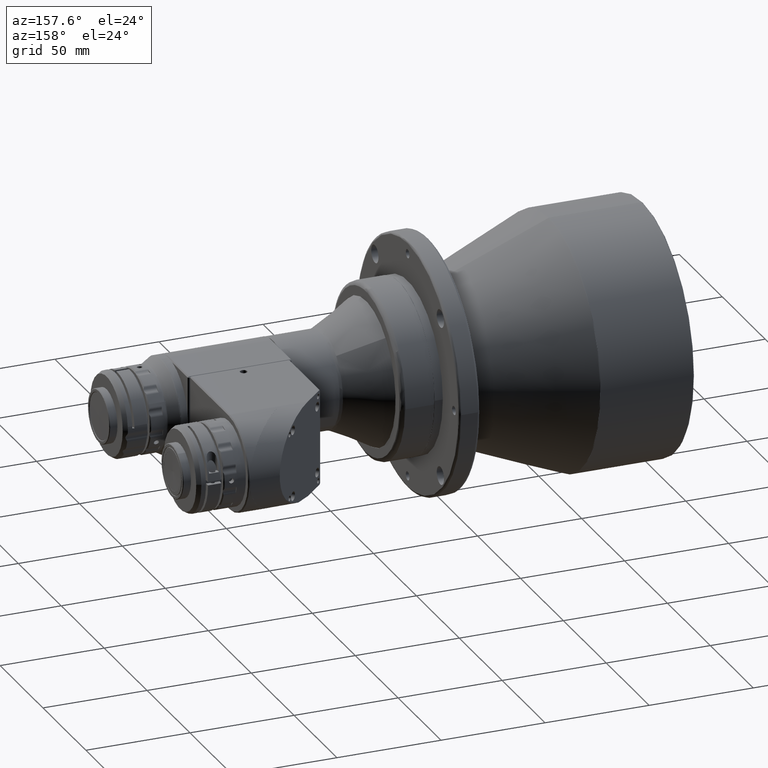
[diagram: clean part render]
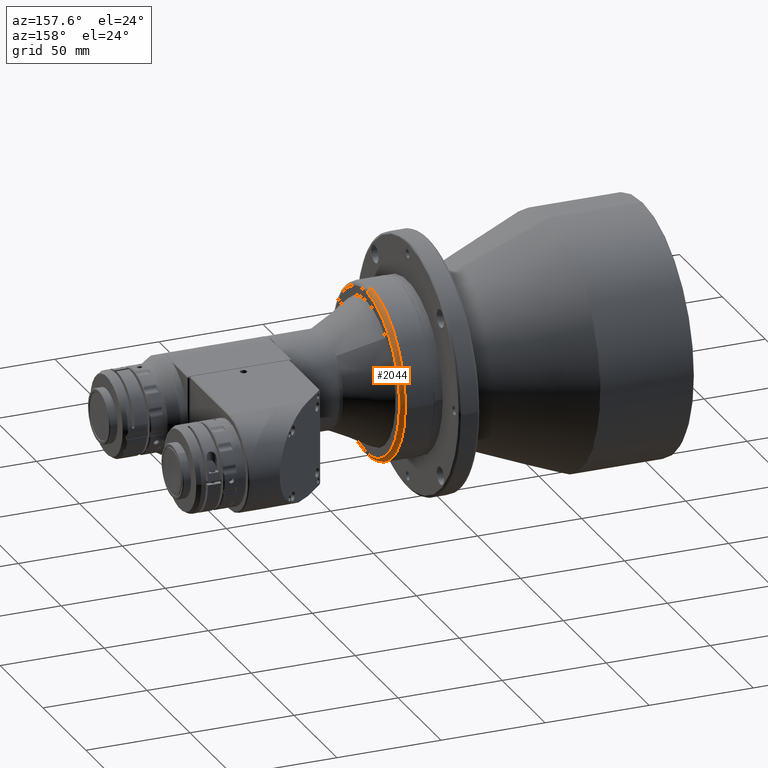
[diagram: same view with one face highlighted and labeled with its STEP entity id]
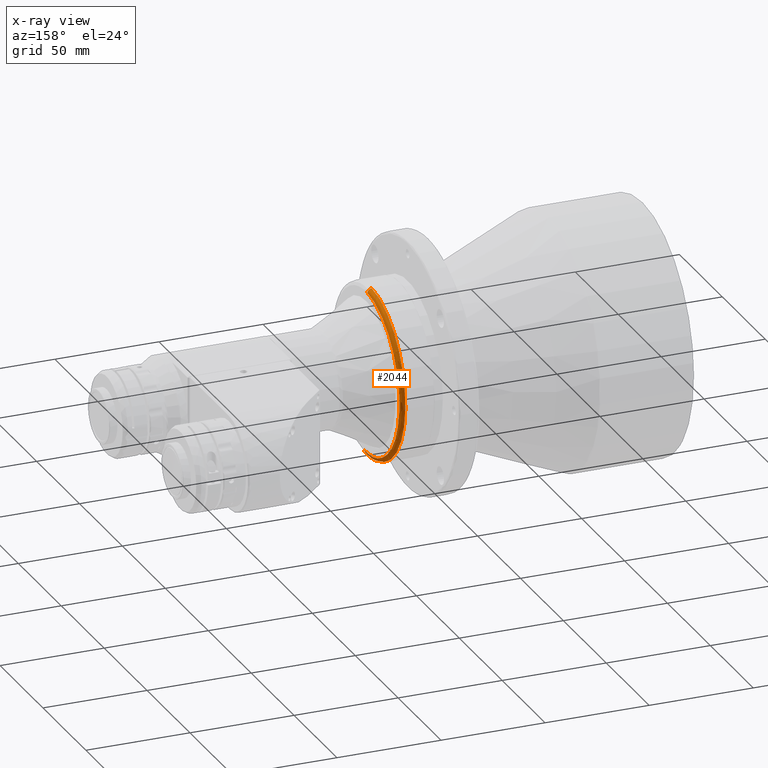
[diagram: x-ray of the same camera — body ghosted, the highlighted face saturated]
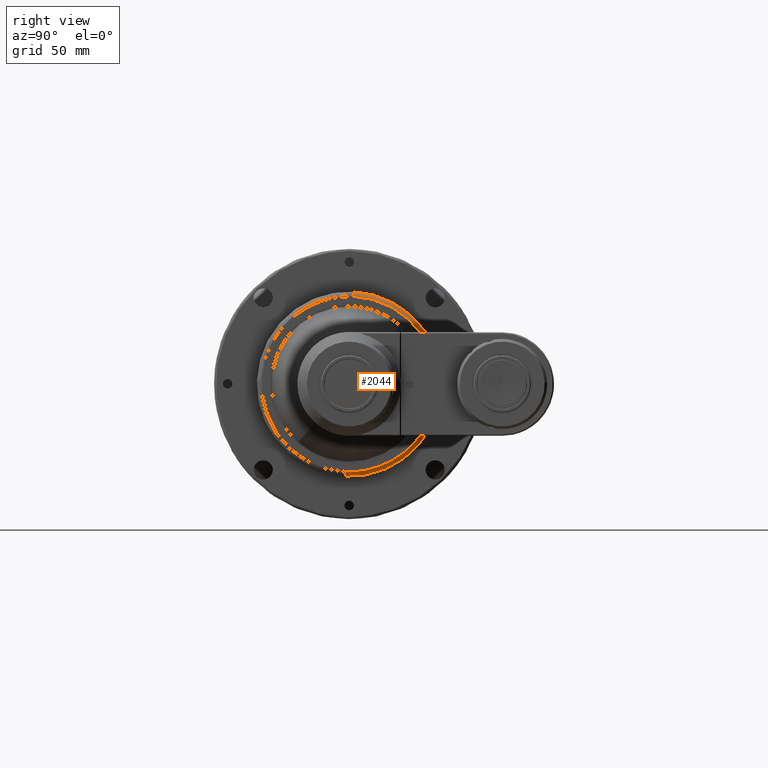
[diagram: same view with one face highlighted and labeled with its STEP entity id]
A machine part, auxiliary view. The second image highlights one B-rep face of the part: STEP entity #2044.
The next image is the same camera in x-ray: the body ghosted, the highlighted face saturated — about 0% of this face is hidden behind the body in this view.
A second angle (right view) of the same face is appended — the face is thin or edge-on in the first view.
In plain terms, the highlighted face is a freeform B-spline surface patch.
Its self-contained STEP definition (entity closure, byte-faithful):
#301 = CARTESIAN_POINT ( 'NONE',  ( 131.0000000000000000, 40.95986500285684400, -1.813686562706748900 ) ) ;
#398 = ORIENTED_EDGE ( 'NONE', *, *, #8883, .F. ) ;
#1074 = CARTESIAN_POINT ( 'NONE',  ( 133.1264408449999600, 82.01812227519533800, 36.56772897949176800 ) ) ;
#2044 = ADVANCED_FACE ( 'NONE', ( #5335 ), #19036, .T. ) ;
#2660 = CARTESIAN_POINT ( 'NONE',  ( 133.1264408449999900, 1.776532863024862000, 40.12079470558573000 ) ) ;
#3134 = CARTESIAN_POINT ( 'NONE',  ( 133.0000000003184900, 79.64885966457691800, 35.51139471390430200 ) ) ;
#3358 = VERTEX_POINT ( 'NONE', #301 ) ;
#3815 = DIRECTION ( 'NONE',  ( 0.0000000000000000000, 0.04423625762699400600, 0.9990210976306547200 ) ) ;
#4199 = CARTESIAN_POINT ( 'NONE',  ( 133.0000000001911100, -1.725214047143347500, -38.96182280060769900 ) ) ;
#4217 = CARTESIAN_POINT ( 'NONE',  ( 130.8003331669999900, 80.08652165978885800, -44.57637225200656400 ) ) ;
#4295 = CARTESIAN_POINT ( 'NONE',  ( 132.1601075299999800, 80.35308431772647000, -44.72474173965983400 ) ) ;
#4579 = CARTESIAN_POINT ( 'NONE',  ( 133.0000000001911100, -1.725214047143347500, -38.96182280060769900 ) ) ;
#4864 = CARTESIAN_POINT ( 'NONE',  ( 133.0000000001911100, -1.725214047143347500, -38.96182280060769900 ) ) ;
#5026 = VERTEX_POINT ( 'NONE', #17159 ) ;
#5335 = FACE_OUTER_BOUND ( 'NONE', #12335, .T. ) ;
#5728 = CARTESIAN_POINT ( 'NONE',  ( 131.0000000000000000, 0.0000000000000000000, 0.0000000000000000000 ) ) ;
#5807 = CARTESIAN_POINT ( 'NONE',  ( 130.8003331670000200, 1.813244568662746500, 40.94988311472530300 ) ) ;
#6122 = ORIENTED_EDGE ( 'NONE', *, *, #9564, .T. ) ;
#6284 = CARTESIAN_POINT ( 'NONE',  ( 133.0000000003184900, 76.19843156955650400, -42.41225090388147100 ) ) ;
#6393 = CARTESIAN_POINT ( 'NONE',  ( 131.0000000000000000, 1.813686559032341400, 40.95986500309924600 ) ) ;
#6636 = CIRCLE ( 'NONE', #18858, 41.00000000000000000 ) ;
#6642 = EDGE_CURVE ( 'NONE', #7968, #3358, #6636, .T. ) ;
#6708 = DIRECTION ( 'NONE',  ( 1.000000000000000000, -0.0000000000000000000, -0.0000000000000000000 ) ) ;
#7107 = CARTESIAN_POINT ( 'NONE',  ( 132.1715728749336400, -1.813686562665811900, -40.95986500193221500 ) ) ;
#7124 = CARTESIAN_POINT ( 'NONE',  ( 130.8003331670000200, -1.813244568662746500, -40.94988311472530300 ) ) ;
#7451 = VERTEX_POINT ( 'NONE', #11716 ) ;
#7968 = VERTEX_POINT ( 'NONE', #14587 ) ;
#8697 = CARTESIAN_POINT ( 'NONE',  ( 132.9999999990744800, -1.777040046977129500, -40.13224882706606400 ) ) ;
#8713 = CARTESIAN_POINT ( 'NONE',  ( 132.9900083309999800, 79.24108439085246400, 35.32958836099845000 ) ) ;
#8851 = CARTESIAN_POINT ( 'NONE',  ( 132.9900083309999800, 75.80832132287524400, -42.19511449686442000 ) ) ;
#8883 = EDGE_CURVE ( 'NONE', #7968, #16023, #16961, .T. ) ;
#9564 = EDGE_CURVE ( 'NONE', #5026, #16023, #15518, .T. ) ;
#9660 = CARTESIAN_POINT ( 'NONE',  ( 133.0000000001911100, 1.725214047143347500, 38.96182280060769900 ) ) ;
#10110 = EDGE_CURVE ( 'NONE', #5026, #7451, #10793, .T. ) ;
#10294 = CARTESIAN_POINT ( 'NONE',  ( 132.9900083309999800, 1.716381533988611900, 38.76235142893143100 ) ) ;
#10759 = ORIENTED_EDGE ( 'NONE', *, *, #14742, .T. ) ;
#10793 =( BOUNDED_CURVE ( )  B_SPLINE_CURVE ( 3, ( #9660, #12564, #13881, #6393 ),
 .UNSPECIFIED., .F., .T. ) 
 B_SPLINE_CURVE_WITH_KNOTS ( ( 4, 4 ),
 ( 0.06314145699999626500, 0.9368585433451660500 ),
 .UNSPECIFIED. ) 
 CURVE ( )  GEOMETRIC_REPRESENTATION_ITEM ( )  RATIONAL_B_SPLINE_CURVE ( ( 0.9565783021659953800, 0.7697947703221846800, 0.7697947703959736600, 0.9565783023873623000 ) ) 
 REPRESENTATION_ITEM ( '' )  );
#11181 = CARTESIAN_POINT ( 'NONE',  ( 131.0000000000000000, 0.0000000000000000000, 0.0000000000000000000 ) ) ;
#11611 = CARTESIAN_POINT ( 'NONE',  ( 133.1264408449999600, 78.46505654914560100, -43.67386043167967800 ) ) ;
#11716 = CARTESIAN_POINT ( 'NONE',  ( 131.0000000000000000, 1.813686559032341400, 40.95986500309924600 ) ) ;
#11804 = DIRECTION ( 'NONE',  ( 0.0000000000000000000, 0.04423625762699578300, 0.9990210976306547200 ) ) ;
#12335 = EDGE_LOOP ( 'NONE', ( #14904, #10759, #13027, #6122, #398 ) ) ;
#12564 = CARTESIAN_POINT ( 'NONE',  ( 132.9999999990744800, 1.777040047002571100, 40.13224882764062300 ) ) ;
#13027 = ORIENTED_EDGE ( 'NONE', *, *, #10110, .F. ) ;
#13180 = CARTESIAN_POINT ( 'NONE',  ( 132.1601075300000000, -1.819279832500749100, -41.08618207461409400 ) ) ;
#13382 = CARTESIAN_POINT ( 'NONE',  ( 133.1264408449999900, -1.776532863024862000, -40.12079470558573000 ) ) ;
#13881 = CARTESIAN_POINT ( 'NONE',  ( 132.1715728742791200, 1.813686562694766500, 40.95986500258612000 ) ) ;
#14587 = CARTESIAN_POINT ( 'NONE',  ( 131.0000000002793300, -1.813686575311789500, -40.95986500237840000 ) ) ;
#14742 = EDGE_CURVE ( 'NONE', #3358, #7451, #18685, .T. ) ;
#14904 = ORIENTED_EDGE ( 'NONE', *, *, #6642, .T. ) ;
#15418 = CARTESIAN_POINT ( 'NONE',  ( 131.0000000002793300, -1.813686575311789500, -40.95986500237840000 ) ) ;
#15518 =( BOUNDED_CURVE ( )  B_SPLINE_CURVE ( 3, ( #18232, #3134, #6284, #4579 ),
 .UNSPECIFIED., .F., .T. ) 
 B_SPLINE_CURVE_WITH_KNOTS ( ( 4, 4 ),
 ( 0.0000000000000000000, 1.000000000000000000 ),
 .UNSPECIFIED. ) 
 CURVE ( )  GEOMETRIC_REPRESENTATION_ITEM ( )  RATIONAL_B_SPLINE_CURVE ( ( 0.9565783021300887600, 0.3188594340433626400, 0.3188594340433626400, 0.9565783021300887600 ) ) 
 REPRESENTATION_ITEM ( '' )  );
#16023 = VERTEX_POINT ( 'NONE', #4864 ) ;
#16627 = AXIS2_PLACEMENT_3D ( 'NONE', #11181, #6708, #3815 ) ;
#16961 =( BOUNDED_CURVE ( )  B_SPLINE_CURVE ( 3, ( #15418, #7107, #8697, #4199 ),
 .UNSPECIFIED., .F., .T. ) 
 B_SPLINE_CURVE_WITH_KNOTS ( ( 4, 4 ),
 ( 0.06314145700000044200, 0.9368585430000024900 ),
 .UNSPECIFIED. ) 
 CURVE ( )  GEOMETRIC_REPRESENTATION_ITEM ( )  RATIONAL_B_SPLINE_CURVE ( ( 0.9565783021659930400, 0.7697947703959739900, 0.7697947703959745500, 0.9565783021659947100 ) ) 
 REPRESENTATION_ITEM ( '' )  );
#17159 = CARTESIAN_POINT ( 'NONE',  ( 133.0000000001911100, 1.725214047143347500, 38.96182280060769900 ) ) ;
#17818 = CARTESIAN_POINT ( 'NONE',  ( 130.8003331669999900, 83.71301079711435000, 37.32339397744405600 ) ) ;
#17878 = DIRECTION ( 'NONE',  ( 1.000000000000000000, -0.0000000000000000000, -0.0000000000000000000 ) ) ;
#18232 = CARTESIAN_POINT ( 'NONE',  ( 133.0000000001911100, 1.725214047143347500, 38.96182280060769900 ) ) ;
#18685 = CIRCLE ( 'NONE', #16627, 41.00000000000000000 ) ;
#18858 = AXIS2_PLACEMENT_3D ( 'NONE', #5728, #17878, #11804 ) ;
#19036 =( BOUNDED_SURFACE ( )  B_SPLINE_SURFACE ( 3, 3, ( 
 ( #5807, #17818, #4217, #7124 ),
 ( #19339, #19199, #4295, #13180 ),
 ( #2660, #1074, #11611, #13382 ),
 ( #10294, #8713, #8851, #19409 ) ),
 .UNSPECIFIED., .F., .F., .F. ) 
 B_SPLINE_SURFACE_WITH_KNOTS ( ( 4, 4 ),
 ( 4, 4 ),
 ( 0.0000000000000000000, 1.000000000000000000 ),
 ( 0.0000000000000000000, 1.000000000000000000 ),
 .UNSPECIFIED. ) 
 GEOMETRIC_REPRESENTATION_ITEM ( )  RATIONAL_B_SPLINE_SURFACE ( (
 ( 1.000000000000000000, 0.3333333333333330400, 0.3333333333333330400, 1.000000000000000000),
 ( 0.7553208711179720800, 0.2517736237059909900, 0.2517736237059909900, 0.7553208711179720800),
 ( 0.7553208711179720800, 0.2517736237059909900, 0.2517736237059909900, 0.7553208711179720800),
 ( 1.000000000000000000, 0.3333333333333330400, 0.3333333333333330400, 1.000000000000000000) ) ) 
 REPRESENTATION_ITEM ( '' )  SURFACE ( )  );
#19199 = CARTESIAN_POINT ( 'NONE',  ( 132.1601075299999800, 83.99164398272795000, 37.44762240956836100 ) ) ;
#19339 = CARTESIAN_POINT ( 'NONE',  ( 132.1601075300000000, 1.819279832500749100, 41.08618207461409400 ) ) ;
#19409 = CARTESIAN_POINT ( 'NONE',  ( 132.9900083309999800, -1.716381533988611900, -38.76235142893143100 ) ) ;